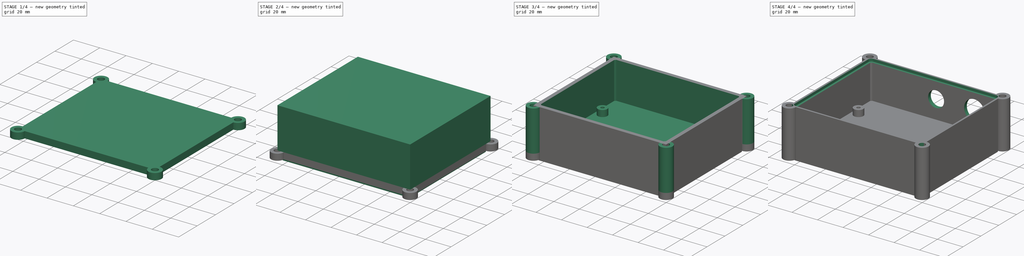
[diagram: build sequence overview — one tinted view per stage of 4, left to right]
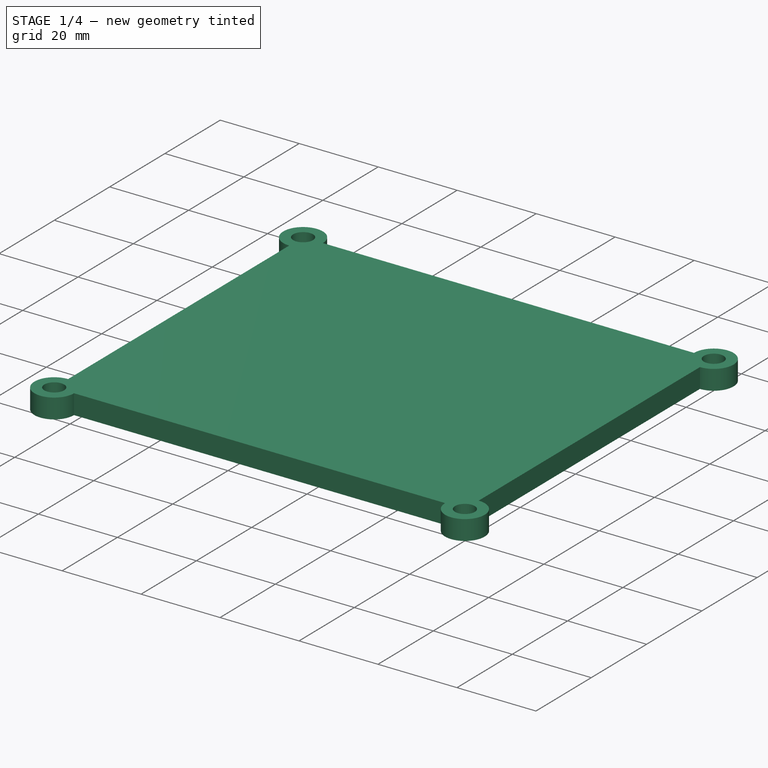
[diagram: stage 1 of 4 — iso view after this stage's code; geometry added in this stage tinted green]
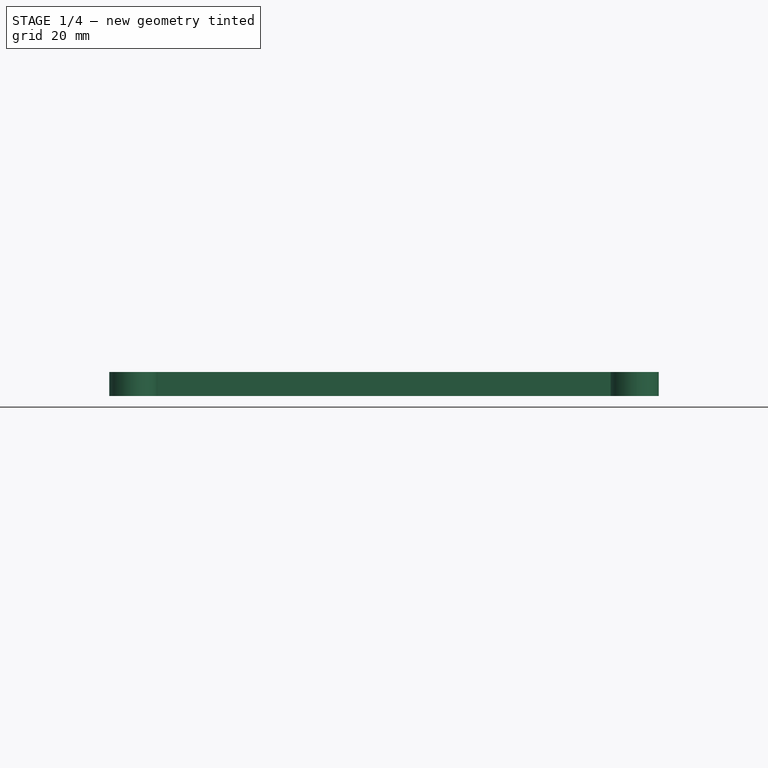
[diagram: stage 1 of 4 — front view after this stage's code; geometry added in this stage tinted green]
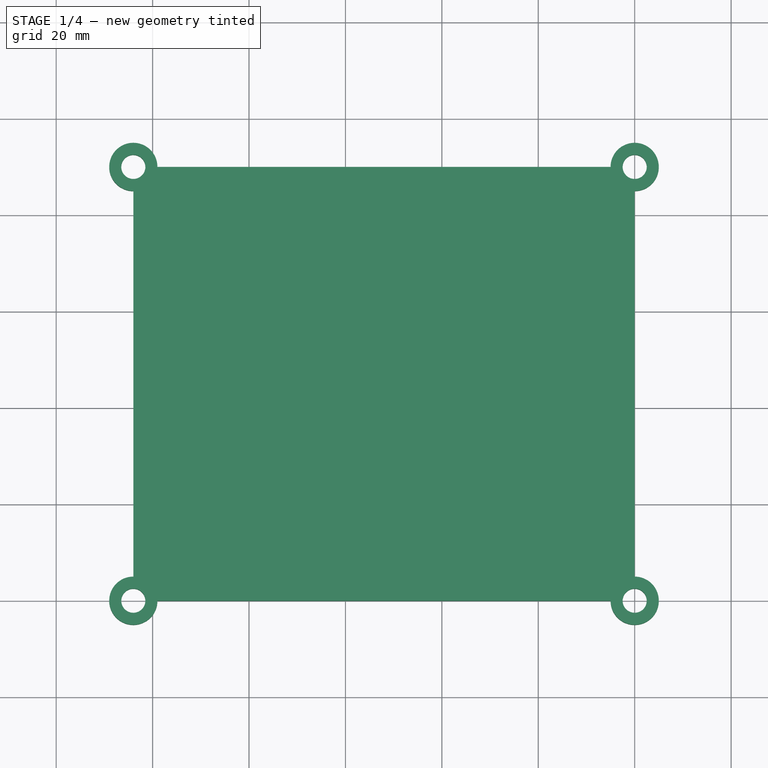
[diagram: stage 1 of 4 — top view after this stage's code; geometry added in this stage tinted green]
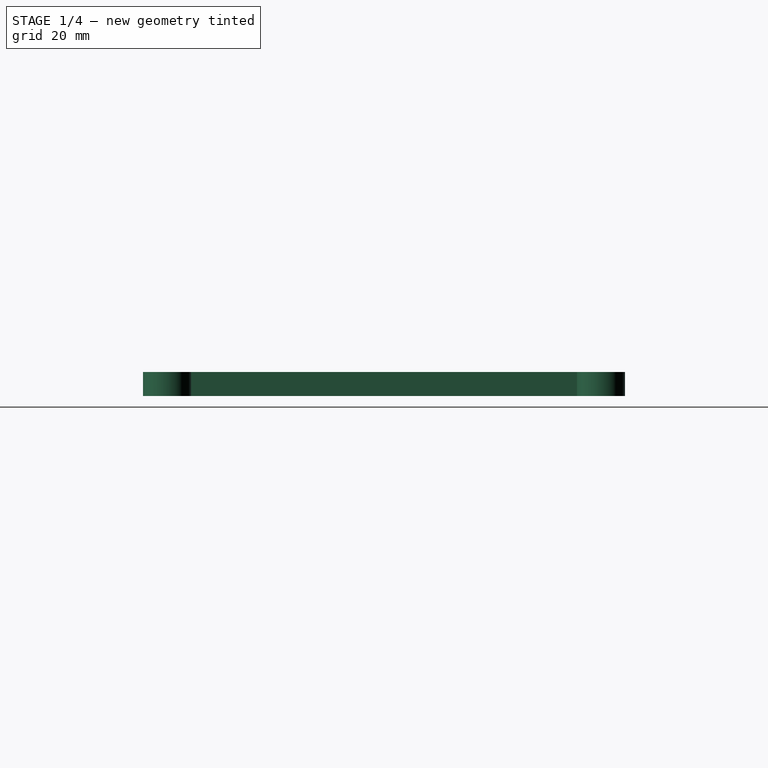
[diagram: stage 1 of 4 — right view after this stage's code; geometry added in this stage tinted green]
FCSTD DOCUMENT  (FreeCAD 0.18.4R)
Label: bat monitor
License: All rights reserved
LicenseURL: http://en.wikipedia.org/wiki/All_rights_reserved
objects: Sketcher::SketchObject×14, PartDesign::Pocket×7, PartDesign::Pad×6, PartDesign::Body×2
note: 42 computed .brp shape members not serialized (recipe doc carries the construction recipe); baked Part::Feature solids carry a one-line shape summary decoded from their .brp

FEATURE [Sketcher::SketchObject] Sketch008
  MapMode = 5
  Support = -> [XY_Plane001]
  sketch-geometry (4):
    g0: LineSegment StartX=0 StartY=0 StartZ=0 EndX=-104 EndY=0 EndZ=0
    g1: LineSegment StartX=-104 StartY=0 StartZ=0 EndX=-104 EndY=90 EndZ=0
    g2: LineSegment StartX=-104 StartY=90 StartZ=0 EndX=0 EndY=90 EndZ=0
    g3: LineSegment StartX=0 StartY=90 StartZ=0 EndX=0 EndY=0 EndZ=0
  constraints (11):
    c: Coincident(g0,g1)
    c: Coincident(g1,g2)
    c: Coincident(g2,g3)
    c: Coincident(g3,g0)
    c: Horizontal(g0)
    c: Horizontal(g2)
    c: Vertical(g1)
    c: Vertical(g3)
    c: Coincident(g0,g-1)
    c: DistanceX(g2,g2) = 104
    c: DistanceY(g1,g1) = 90
FEATURE [PartDesign::Pad] Pad003
  Length = 5
  Length2 = 100
  Profile = -> Sketch008
  Refine = true
  Reversed = true
  Type = 0
FEATURE [Sketcher::SketchObject] Sketch009
  ExternalGeometry = -> [Pad003]
  MapMode = 5
  Placement = pos=(0,0,-5) rot=(1,0,0;3.14159rad)
  Support = -> [Pad003]
  sketch-geometry (4):
    g0: Circle CenterX=-104 CenterY=0 CenterZ=0 NormalX=0 NormalY=0 NormalZ=1 AngleXU=0 Radius=5
    g1: Circle CenterX=0 CenterY=0 CenterZ=0 NormalX=0 NormalY=0 NormalZ=1 AngleXU=0 Radius=5
    g2: Circle CenterX=0 CenterY=-90 CenterZ=0 NormalX=0 NormalY=0 NormalZ=1 AngleXU=0 Radius=5
    g3: Circle CenterX=-104 CenterY=-90 CenterZ=0 NormalX=0 NormalY=0 NormalZ=1 AngleXU=0 Radius=5
  constraints (8):
    c: Coincident(g0,g-5)
    c: Coincident(g1,g-1)
    c: Coincident(g2,g-3)
    c: Coincident(g3,g-5)
    c: Diameter(g0) = 10
    c: Equal(g0,g1)
    c: Equal(g0,g2)
    c: Equal(g0,g3)
FEATURE [PartDesign::Pad] Pad004
  BaseFeature = -> Pad003
  Length = 5
  Length2 = 100
  Profile = -> Sketch009
  Refine = true
  Reversed = true
  Type = 0
FEATURE [Sketcher::SketchObject] Sketch010
  ExternalGeometry = -> [Pad004]
  MapMode = 5
  Placement = pos=(0,0,-5) rot=(1,0,0;3.14159rad)
  Support = -> [Pad004]
  sketch-geometry (4):
    g0: Circle CenterX=-104 CenterY=0 CenterZ=0 NormalX=0 NormalY=0 NormalZ=1 AngleXU=0 Radius=2.5
    g1: Circle CenterX=-104 CenterY=-90 CenterZ=0 NormalX=0 NormalY=0 NormalZ=1 AngleXU=0 Radius=2.5
    g2: Circle CenterX=0 CenterY=-90 CenterZ=0 NormalX=0 NormalY=0 NormalZ=1 AngleXU=0 Radius=2.5
    g3: Circle CenterX=0 CenterY=0 CenterZ=0 NormalX=0 NormalY=0 NormalZ=1 AngleXU=0 Radius=2.5
  constraints (8):
    c: Diameter(g0) = 5
    c: Equal(g0,g3)
    c: Equal(g0,g2)
    c: Equal(g0,g1)
    c: Coincident(g2,g-6)
    c: Coincident(g1,g-3)
    c: Coincident(g0,g-4)
    c: Coincident(g3,g-1)
FEATURE [PartDesign::Pocket] Pocket005
  BaseFeature = -> Pad004
  Length = 5
  Length2 = 100
  Profile = -> Sketch010
  Refine = true
  Type = 0
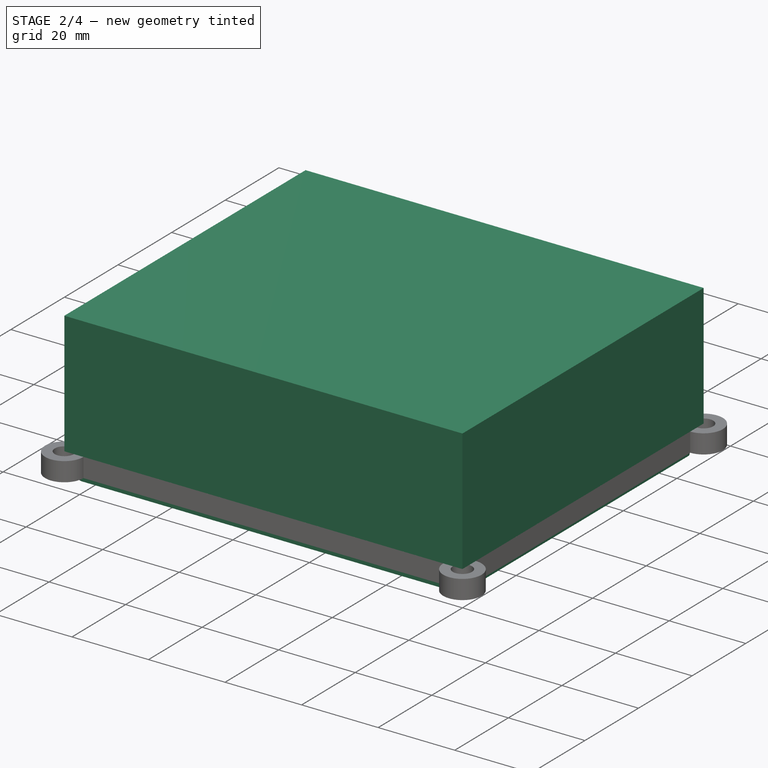
[diagram: stage 2 of 4 — iso view after this stage's code; geometry added in this stage tinted green]
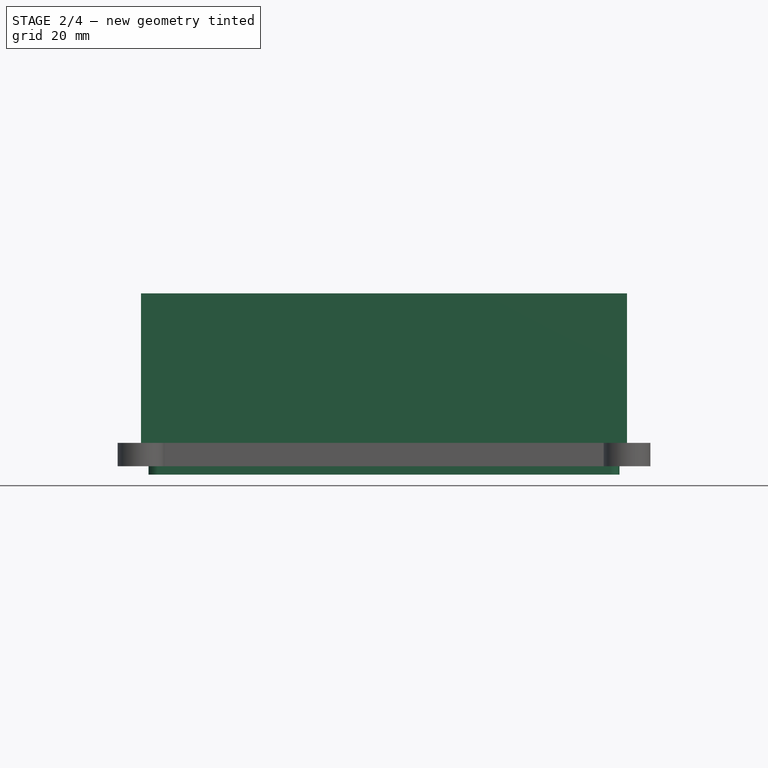
[diagram: stage 2 of 4 — front view after this stage's code; geometry added in this stage tinted green]
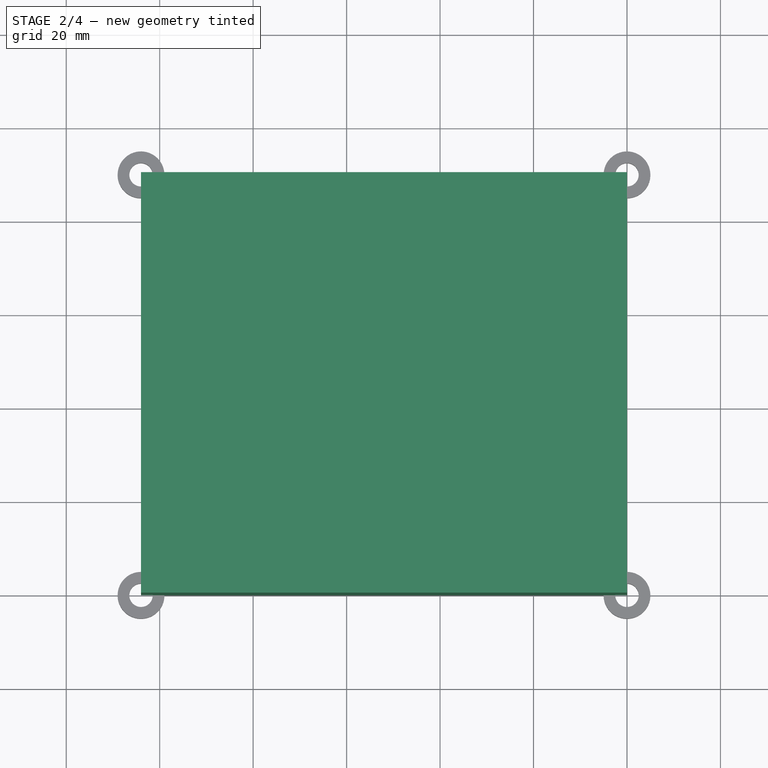
[diagram: stage 2 of 4 — top view after this stage's code; geometry added in this stage tinted green]
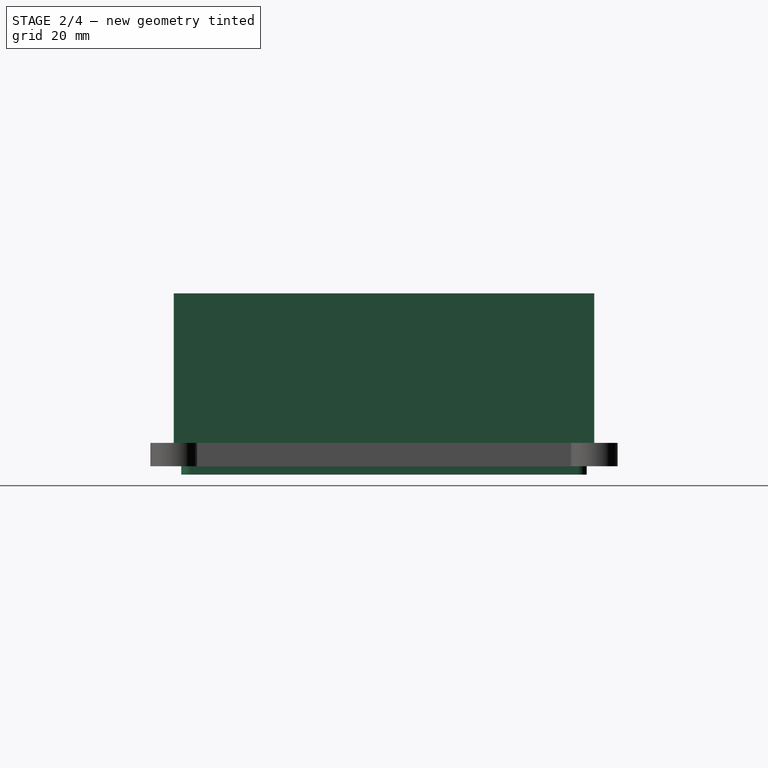
[diagram: stage 2 of 4 — right view after this stage's code; geometry added in this stage tinted green]
FEATURE [Sketcher::SketchObject] Sketch
  MapMode = 5
  Support = -> [XY_Plane]
  sketch-geometry (18):
    g0: LineSegment StartX=-104 StartY=90 StartZ=0 EndX=0 EndY=90 EndZ=0
    g1: LineSegment StartX=0 StartY=90 StartZ=0 EndX=0 EndY=0 EndZ=0
    g2: LineSegment StartX=0 StartY=0 StartZ=0 EndX=-104 EndY=0 EndZ=0
    g3: LineSegment StartX=-104 StartY=0 StartZ=0 EndX=-104 EndY=90 EndZ=0
    g4: LineSegment StartX=-98.98 StartY=68.5 StartZ=0 EndX=-5 EndY=68.5 EndZ=0
    g5: LineSegment StartX=-5 StartY=68.5 StartZ=0 EndX=-5 EndY=5 EndZ=0
    g6: LineSegment StartX=-5 StartY=5 StartZ=0 EndX=-98.98 EndY=5 EndZ=0
    g7: LineSegment StartX=-98.98 StartY=5 StartZ=0 EndX=-98.98 EndY=68.5 EndZ=0
    g8: Circle CenterX=-95.17 CenterY=64.69 CenterZ=0 NormalX=0 NormalY=0 NormalZ=1 AngleXU=0 Radius=3.5
    g9: Circle CenterX=-95.17 CenterY=64.69 CenterZ=0 NormalX=0 NormalY=0 NormalZ=1 AngleXU=0 Radius=1.375
    g10: Circle CenterX=-8.81 CenterY=64.69 CenterZ=0 NormalX=0 NormalY=0 NormalZ=1 AngleXU=0 Radius=3.5
    g11: Circle CenterX=-8.81 CenterY=64.69 CenterZ=0 NormalX=0 NormalY=0 NormalZ=1 AngleXU=0 Radius=1.375
    g12: Circle CenterX=-95.17 CenterY=8.81 CenterZ=0 NormalX=0 NormalY=0 NormalZ=1 AngleXU=0 Radius=3.5
    g13: Circle CenterX=-95.17 CenterY=8.81 CenterZ=0 NormalX=0 NormalY=0 NormalZ=1 AngleXU=0 Radius=1.375
    g14: Circle CenterX=-8.81 CenterY=8.81 CenterZ=0 NormalX=0 NormalY=0 NormalZ=1 AngleXU=0 Radius=3.5
    g15: Circle CenterX=-8.81 CenterY=8.81 CenterZ=0 NormalX=0 NormalY=0 NormalZ=1 AngleXU=0 Radius=1.375
    g16: LineSegment [constr] StartX=-51.99 StartY=68.5 StartZ=0 EndX=-51.99 EndY=5 EndZ=0
    g17: LineSegment [constr] StartX=-98.98 StartY=36.75 StartZ=0 EndX=0 EndY=36.75 EndZ=0
  constraints (46):
    c: Coincident(g0,g1)
    c: Coincident(g1,g2)
    c: Coincident(g2,g3)
    c: Coincident(g3,g0)
    c: Horizontal(g0)
    c: Horizontal(g2)
    c: Vertical(g1)
    c: Vertical(g3)
    c: DistanceY(g3,g3) = 90
    c: DistanceX(g0,g0) = 104
    c: Coincident(g4,g5)
    c: Coincident(g5,g6)
    c: Coincident(g6,g7)
    c: Coincident(g7,g4)
    c: Horizontal(g4)
    c: Horizontal(g6)
    c: Vertical(g5)
    c: Vertical(g7)
    c: DistanceX(g4,g4) = 93.98
    c: DistanceY(g7,g7) = 63.5
    c: Coincident(g1,g-1)
    c: Coincident(g9,g8)
    c: Coincident(g11,g10)
    c: Coincident(g13,g12)
    c: Coincident(g15,g14)
    c: Diameter(g9) = 2.75
    c: Equal(g9,g13)
    c: Equal(g9,g15)
    c: Equal(g9,g11)
    c: Diameter(g8) = 7
    c: Equal(g8,g10)
    c: Equal(g8,g14)
    c: Equal(g8,g12)
    c: DistanceY(g14,g10) = 55.88
    c: DistanceX(g12,g14) = 86.36
    c: PointOnObject(g16,g4)
    c: PointOnObject(g16,g6)
    c: PointOnObject(g17,g7)
    c: PointOnObject(g17,g1)
    c: Symmetric(g6,g5,g16)
    c: Symmetric(g4,g5,g17)
    c: Symmetric(g10,g8,g16)
    c: Symmetric(g12,g8,g17)
    c: DistanceY(g1,g5) = 5
    c: DistanceX(g5,g1) = 5
    c: Symmetric(g10,g14,g17)
FEATURE [Sketcher::SketchObject] Sketch001
  ExternalGeometry = -> [Sketch]
  MapMode = 5
  Support = -> [XY_Plane]
  sketch-geometry (4):
    g0: LineSegment StartX=-104 StartY=90 StartZ=0 EndX=0 EndY=90 EndZ=0
    g1: LineSegment StartX=0 StartY=90 StartZ=0 EndX=0 EndY=0 EndZ=0
    g2: LineSegment StartX=0 StartY=0 StartZ=0 EndX=-104 EndY=0 EndZ=0
    g3: LineSegment StartX=-104 StartY=0 StartZ=0 EndX=-104 EndY=90 EndZ=0
  constraints (10):
    c: Coincident(g0,g1)
    c: Coincident(g1,g2)
    c: Coincident(g2,g3)
    c: Coincident(g3,g0)
    c: Horizontal(g0)
    c: Horizontal(g2)
    c: Vertical(g1)
    c: Vertical(g3)
    c: Coincident(g0,g-4)
    c: Coincident(g1,g-1)
FEATURE [PartDesign::Pad] Pad
  Length = 32
  Length2 = 100
  Profile = -> Sketch001
  Type = 0
FEATURE [Sketcher::SketchObject] Sketch011
  ExternalGeometry = -> [Pocket005]
  MapMode = 5
  Support = -> [Pocket005]
  sketch-geometry (8):
    g0: LineSegment StartX=-34.9811 StartY=28.1592 StartZ=0 EndX=-31.9811 EndY=28.1592 EndZ=0
    g1: LineSegment StartX=-31.9811 StartY=28.1592 StartZ=0 EndX=-31.9811 EndY=17.1592 EndZ=0
    g2: LineSegment StartX=-31.9811 StartY=17.1592 StartZ=0 EndX=-34.9811 EndY=17.1592 EndZ=0
    g3: LineSegment StartX=-34.9811 StartY=17.1592 StartZ=0 EndX=-34.9811 EndY=28.1592 EndZ=0
    g4: LineSegment [constr] StartX=-71.4811 StartY=28.6592 StartZ=0 EndX=-31.4811 EndY=28.6592 EndZ=0
    g5: LineSegment [constr] StartX=-31.4811 StartY=28.6592 StartZ=0 EndX=-31.4811 EndY=16.6592 EndZ=0
    g6: LineSegment [constr] StartX=-31.4811 StartY=16.6592 StartZ=0 EndX=-71.4811 EndY=16.6592 EndZ=0
    g7: LineSegment [constr] StartX=-71.4811 StartY=16.6592 StartZ=0 EndX=-71.4811 EndY=28.6592 EndZ=0
  constraints (22):
    c: Coincident(g0,g1)
    c: Coincident(g1,g2)
    c: Coincident(g2,g3)
    c: Coincident(g3,g0)
    c: Horizontal(g0)
    c: Horizontal(g2)
    c: Vertical(g1)
    c: Vertical(g3)
    c: DistanceY(g1,g1) = 11
    c: DistanceX(g0,g0) = 3
    c: Coincident(g4,g5)
    c: Coincident(g5,g6)
    c: Coincident(g6,g7)
    c: Coincident(g7,g4)
    c: Horizontal(g4)
    c: Horizontal(g6)
    c: Vertical(g5)
    c: Vertical(g7)
    c: DistanceX(g4,g4) = 40
    c: DistanceY(g5,g5) = 12
    c: DistanceY(g6,g2) = 0.5
    c: DistanceX(g1,g5) = 0.5
FEATURE [PartDesign::Pocket] Pocket006
  BaseFeature = -> Pocket005
  Length = 5
  Length2 = 100
  Profile = -> Sketch011
  Refine = true
  Type = 0
FEATURE [PartDesign::Body] Body
  Group = -> [Sketch,Sketch001,Pad,Sketch002,Pocket,Sketch003,Pad001,Sketch004,Sketch005,Pocket002,Sketch006,Pad002,Pocket003,Sketch007,Pocket004,Sketch012,Pocket007]
  Origin = -> Origin
  Tip = -> Pocket007
FEATURE [Sketcher::SketchObject] Sketch013
  ExternalGeometry = -> [Pocket006]
  MapMode = 5
  Placement = pos=(0,0,-5) rot=(1,0,0;3.14159rad)
  Support = -> [Pocket006]
  sketch-geometry (12):
    g0: LineSegment StartX=-100.4 StartY=-1.6 StartZ=0 EndX=-3.6 EndY=-1.6 EndZ=0
    g1: LineSegment StartX=-1.6 StartY=-3.6 StartZ=0 EndX=-1.6 EndY=-86.4 EndZ=0
    g2: LineSegment StartX=-3.6 StartY=-88.4 StartZ=0 EndX=-100.4 EndY=-88.4 EndZ=0
    g3: LineSegment StartX=-102.4 StartY=-86.4 StartZ=0 EndX=-102.4 EndY=-3.6 EndZ=0
    g4: LineSegment StartX=-101 StartY=-3 StartZ=0 EndX=-3 EndY=-3 EndZ=0
    g5: LineSegment StartX=-3 StartY=-3 StartZ=0 EndX=-3 EndY=-87 EndZ=0
    g6: LineSegment StartX=-3 StartY=-87 StartZ=0 EndX=-101 EndY=-87 EndZ=0
    g7: LineSegment StartX=-101 StartY=-87 StartZ=0 EndX=-101 EndY=-3 EndZ=0
    g8: ArcOfCircle CenterX=-3.6 CenterY=-3.6 CenterZ=0 NormalX=0 NormalY=0 NormalZ=1 AngleXU=0 Radius=2 StartAngle=0 EndAngle=1.5708
    g9: ArcOfCircle CenterX=-100.4 CenterY=-3.6 CenterZ=0 NormalX=0 NormalY=0 NormalZ=1 AngleXU=0 Radius=2 StartAngle=1.5708 EndAngle=3.14159
    g10: ArcOfCircle CenterX=-100.4 CenterY=-86.4 CenterZ=0 NormalX=0 NormalY=0 NormalZ=1 AngleXU=0 Radius=2 StartAngle=3.14159 EndAngle=4.71239
    g11: ArcOfCircle CenterX=-3.6 CenterY=-86.4 CenterZ=0 NormalX=0 NormalY=0 NormalZ=1 AngleXU=0 Radius=2 StartAngle=4.71239 EndAngle=6.28319
  constraints (32):
    c: Horizontal(g0)
    c: Horizontal(g2)
    c: Vertical(g1)
    c: Vertical(g3)
    c: Coincident(g4,g5)
    c: Coincident(g5,g6)
    c: Coincident(g6,g7)
    c: Coincident(g7,g4)
    c: Horizontal(g4)
    c: Horizontal(g6)
    c: Vertical(g5)
    c: Vertical(g7)
    c: Tangent(g0,g8) = 1.5708
    c: Tangent(g1,g8) = 1.5708
    c: Tangent(g0,g9) = 1.5708
    c: Tangent(g3,g9) = 1.5708
    c: Tangent(g2,g10) = 1.5708
    c: Tangent(g3,g10) = 1.5708
    c: Tangent(g1,g11) = 1.5708
    c: Tangent(g2,g11) = 1.5708
    c: Diameter(g9) = 4
    c: Equal(g9,g8)
    c: Equal(g9,g11)
    c: Equal(g9,g10)
    c: DistanceX(g4,g-3) = 3
    c: DistanceY(g4,g-5) = 3
    c: DistanceX(g-4,g6) = 3
    c: DistanceY(g-6,g6) = 3
    c: DistanceY(g2,g6) = 1.4
    c: DistanceX(g3,g6) = 1.4
    c: DistanceX(g4,g1) = 1.4
    c: DistanceY(g4,g0) = 1.4
FEATURE [PartDesign::Pad] Pad005
  BaseFeature = -> Pocket006
  Length = 1.8
  Length2 = 100
  Profile = -> Sketch013
  Refine = true
  Type = 0
FEATURE [PartDesign::Body] Body001  label="top"
  Group = -> [Sketch008,Pad003,Sketch009,Pad004,Sketch010,Pocket005,Sketch011,Pocket006,Sketch013,Pad005]
  Origin = -> Origin001
  Placement = pos=(0,0,39) rot=(0,0,1;0rad)
  Tip = -> Pad005
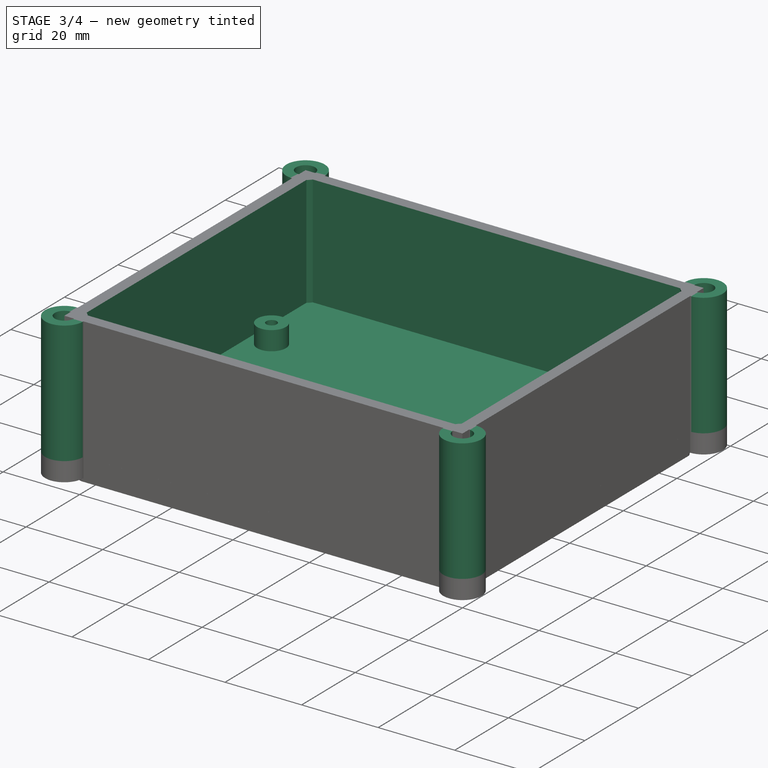
[diagram: stage 3 of 4 — iso view after this stage's code; geometry added in this stage tinted green]
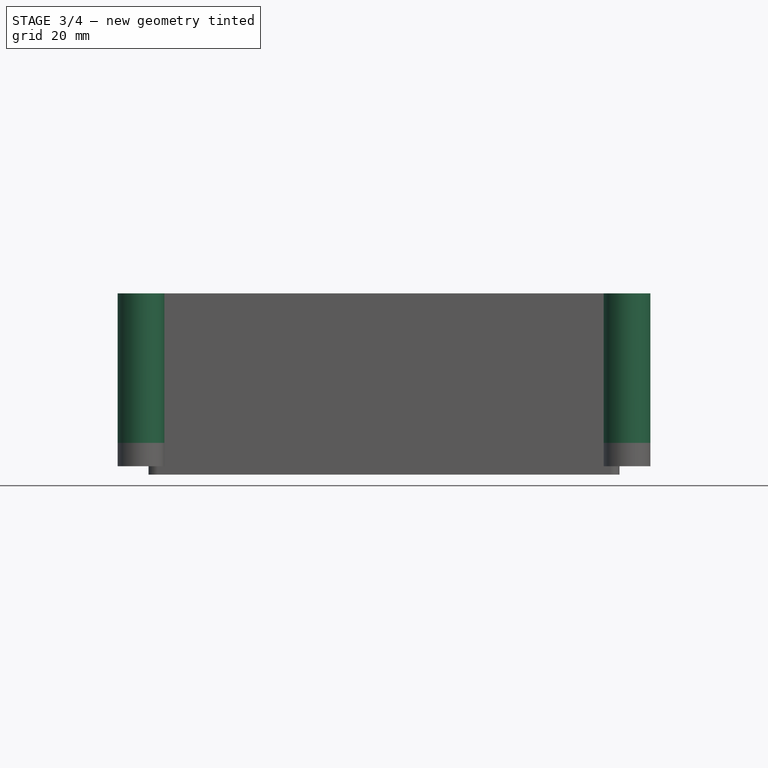
[diagram: stage 3 of 4 — front view after this stage's code; geometry added in this stage tinted green]
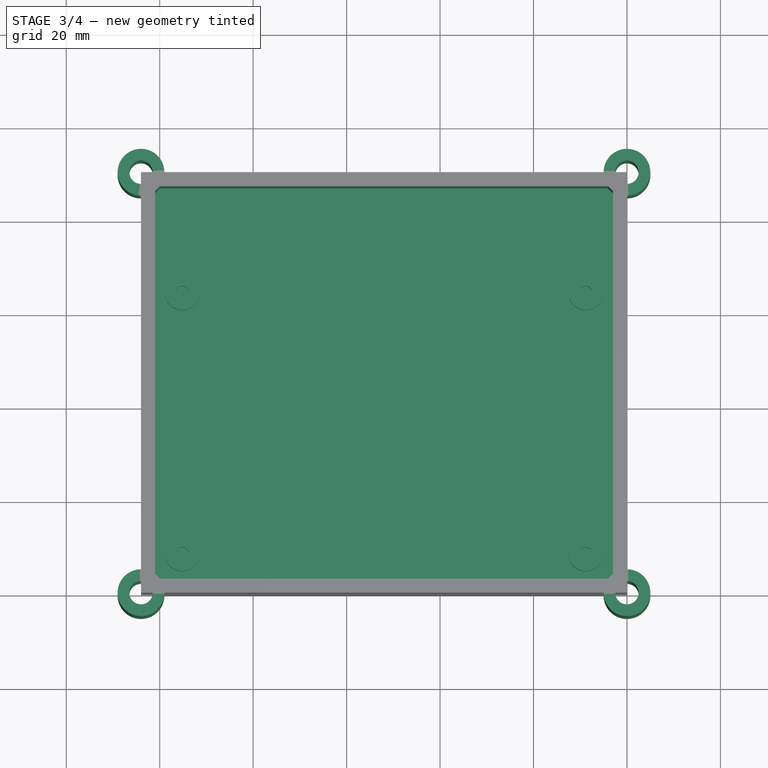
[diagram: stage 3 of 4 — top view after this stage's code; geometry added in this stage tinted green]
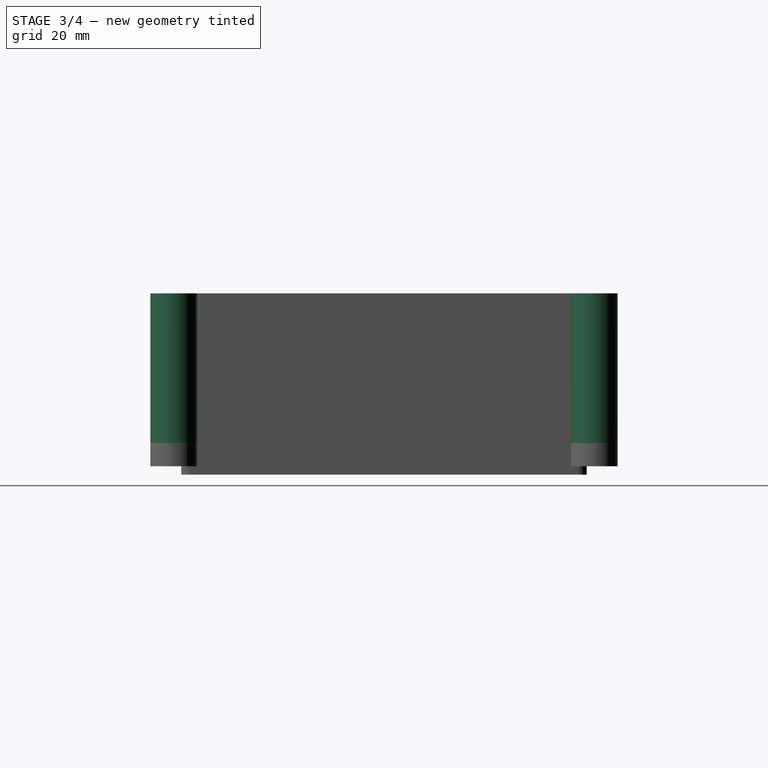
[diagram: stage 3 of 4 — right view after this stage's code; geometry added in this stage tinted green]
FEATURE [Sketcher::SketchObject] Sketch002
  ExternalGeometry = -> [Pad]
  MapMode = 5
  Placement = pos=(0,0,32) rot=(0,0,1;0rad)
  Support = -> [Pad]
  sketch-geometry (4):
    g0: LineSegment StartX=-101 StartY=87 StartZ=0 EndX=-3 EndY=87 EndZ=0
    g1: LineSegment StartX=-3 StartY=87 StartZ=0 EndX=-3 EndY=3 EndZ=0
    g2: LineSegment StartX=-3 StartY=3 StartZ=0 EndX=-101 EndY=3 EndZ=0
    g3: LineSegment StartX=-101 StartY=3 StartZ=0 EndX=-101 EndY=87 EndZ=0
  constraints (12):
    c: Coincident(g0,g1)
    c: Coincident(g1,g2)
    c: Coincident(g2,g3)
    c: Coincident(g3,g0)
    c: Horizontal(g0)
    c: Horizontal(g2)
    c: Vertical(g1)
    c: Vertical(g3)
    c: DistanceY(g-1,g1) = 3
    c: DistanceX(g1,g-1) = 3
    c: DistanceY(g0,g-4) = 3
    c: DistanceX(g-4,g0) = 3
FEATURE [PartDesign::Pocket] Pocket
  BaseFeature = -> Pad
  Length = 29
  Length2 = 100
  Profile = -> Sketch002
  Type = 0
  expr: Length = Pad.Length - 3mm
FEATURE [Sketcher::SketchObject] Sketch003
  ExternalGeometry = -> [Sketch]
  MapMode = 5
  Placement = pos=(0,0,3) rot=(0,0,1;0rad)
  Support = -> [Pocket]
  sketch-geometry (8):
    g0: Circle CenterX=-95.17 CenterY=64.69 CenterZ=0 NormalX=0 NormalY=0 NormalZ=1 AngleXU=0 Radius=3.75
    g1: Circle CenterX=-95.17 CenterY=64.69 CenterZ=0 NormalX=0 NormalY=0 NormalZ=1 AngleXU=0 Radius=1.375
    g2: Circle CenterX=-95.17 CenterY=8.81 CenterZ=0 NormalX=0 NormalY=0 NormalZ=1 AngleXU=0 Radius=3.75
    g3: Circle CenterX=-95.17 CenterY=8.81 CenterZ=0 NormalX=0 NormalY=0 NormalZ=1 AngleXU=0 Radius=1.375
    g4: Circle CenterX=-8.81 CenterY=8.81 CenterZ=0 NormalX=0 NormalY=0 NormalZ=1 AngleXU=0 Radius=3.75
    g5: Circle CenterX=-8.81 CenterY=8.81 CenterZ=0 NormalX=0 NormalY=0 NormalZ=1 AngleXU=0 Radius=1.375
    g6: Circle CenterX=-8.81 CenterY=64.69 CenterZ=0 NormalX=0 NormalY=0 NormalZ=1 AngleXU=0 Radius=3.75
    g7: Circle CenterX=-8.81 CenterY=64.69 CenterZ=0 NormalX=0 NormalY=0 NormalZ=1 AngleXU=0 Radius=1.375
  constraints (16):
    c: Coincident(g3,g2)
    c: Coincident(g5,g4)
    c: Coincident(g7,g6)
    c: Diameter(g1) = 2.75
    c: Equal(g1,g7)
    c: Equal(g1,g5)
    c: Equal(g1,g3)
    c: Diameter(g0) = 7.5
    c: Equal(g0,g6)
    c: Equal(g0,g2)
    c: Equal(g0,g4)
    c: Coincident(g0,g-3)
    c: Coincident(g1,g0)
    c: Coincident(g-6,g6)
    c: Coincident(g4,g-4)
    c: Coincident(g2,g-5)
FEATURE [PartDesign::Pad] Pad001
  BaseFeature = -> Pocket
  Length = 5
  Length2 = 100
  Profile = -> Sketch003
  Type = 0
FEATURE [Sketcher::SketchObject] Sketch004
  ExternalGeometry = -> [Pad001]
  MapMode = 5
  Placement = pos=(0,90,0) rot=(0,0.707107,0.707107;3.14159rad)
  Support = -> [Pad001]
  sketch-geometry (2):
    g0: Circle CenterX=20 CenterY=17.5 CenterZ=0 NormalX=0 NormalY=0 NormalZ=1 AngleXU=0 Radius=8
    g1: Circle CenterX=50 CenterY=17.5 CenterZ=0 NormalX=0 NormalY=0 NormalZ=1 AngleXU=0 Radius=6.25
  constraints (6):
    c: Diameter(g0) = 16
    c: DistanceX(g-1,g0) = 20
    c: DistanceY(g-1,g0) = 17.5
    c: Diameter(g1) = 12.5
    c: Horizontal(g1,g0)
    c: DistanceX(g0,g1) = 30
FEATURE [Sketcher::SketchObject] Sketch005
  MapMode = 5
  Placement = pos=(0,0,0) rot=(1,0,0;1.5708rad)
  sketch-geometry (4):
    g0: LineSegment StartX=-110.808 StartY=19.6633 StartZ=0 EndX=-108.058 EndY=19.6633 EndZ=0
    g1: LineSegment StartX=-108.058 StartY=19.6633 StartZ=0 EndX=-108.058 EndY=8.66332 EndZ=0
    g2: LineSegment StartX=-108.058 StartY=8.66332 StartZ=0 EndX=-110.808 EndY=8.66332 EndZ=0
    g3: LineSegment StartX=-110.808 StartY=8.66332 StartZ=0 EndX=-110.808 EndY=19.6633 EndZ=0
  constraints (10):
    c: Coincident(g0,g1)
    c: Coincident(g1,g2)
    c: Coincident(g2,g3)
    c: Coincident(g3,g0)
    c: Horizontal(g0)
    c: Horizontal(g2)
    c: Vertical(g1)
    c: Vertical(g3)
    c: DistanceY(g1,g1) = 11
    c: DistanceX(g0,g0) = 2.75
FEATURE [PartDesign::Pocket] Pocket002
  BaseFeature = -> Pad001
  Length = 5
  Length2 = 100
  Profile = -> Sketch005
  Type = 0
FEATURE [Sketcher::SketchObject] Sketch006
  ExternalGeometry = -> [Sketch]
  MapMode = 5
  Placement = pos=(0,0,0) rot=(1,0,0;3.14159rad)
  Support = -> [Pocket002]
  sketch-geometry (8):
    g0: Circle CenterX=-104 CenterY=0 CenterZ=0 NormalX=0 NormalY=0 NormalZ=1 AngleXU=0 Radius=5
    g1: Circle CenterX=-104 CenterY=-90 CenterZ=0 NormalX=0 NormalY=0 NormalZ=1 AngleXU=0 Radius=5
    g2: Circle CenterX=0 CenterY=-90 CenterZ=0 NormalX=0 NormalY=0 NormalZ=1 AngleXU=0 Radius=5
    g3: Circle CenterX=0 CenterY=0 CenterZ=0 NormalX=0 NormalY=0 NormalZ=1 AngleXU=0 Radius=5
    g4: Circle CenterX=-104 CenterY=0 CenterZ=0 NormalX=0 NormalY=0 NormalZ=1 AngleXU=0 Radius=2.5
    g5: Circle CenterX=-104 CenterY=-90 CenterZ=0 NormalX=0 NormalY=0 NormalZ=1 AngleXU=0 Radius=2.5
    g6: Circle CenterX=0 CenterY=-90 CenterZ=0 NormalX=0 NormalY=0 NormalZ=1 AngleXU=0 Radius=2.5
    g7: Circle CenterX=0 CenterY=0 CenterZ=0 NormalX=0 NormalY=0 NormalZ=1 AngleXU=0 Radius=2.5
  constraints (16):
    c: Coincident(g4,g0)
    c: Coincident(g5,g1)
    c: Coincident(g6,g2)
    c: Coincident(g7,g3)
    c: Diameter(g4) = 5
    c: Equal(g4,g5)
    c: Equal(g4,g6)
    c: Equal(g4,g7)
    c: Diameter(g0) = 10
    c: Equal(g0,g1)
    c: Equal(g0,g2)
    c: Equal(g0,g3)
    c: Coincident(g2,g-4)
    c: Coincident(g1,g-5)
    c: Coincident(g0,g-5)
    c: Coincident(g3,g-1)
FEATURE [PartDesign::Pad] Pad002
  BaseFeature = -> Pocket002
  Length = 32
  Length2 = 100
  Profile = -> Sketch006
  Refine = true
  Reversed = true
  Type = 0
  expr: Length = Pad.Length
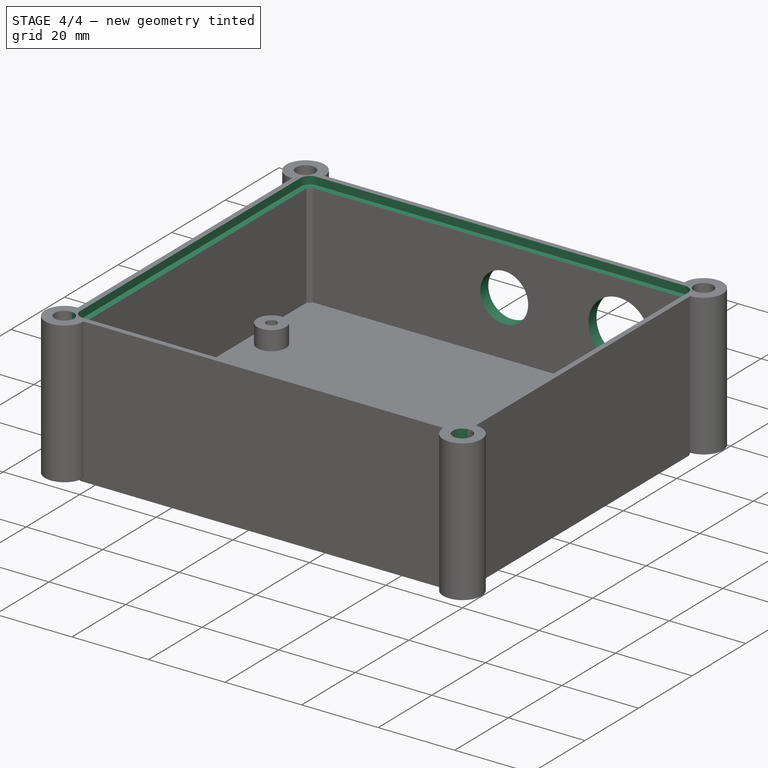
[diagram: stage 4 of 4 — iso view after this stage's code; geometry added in this stage tinted green]
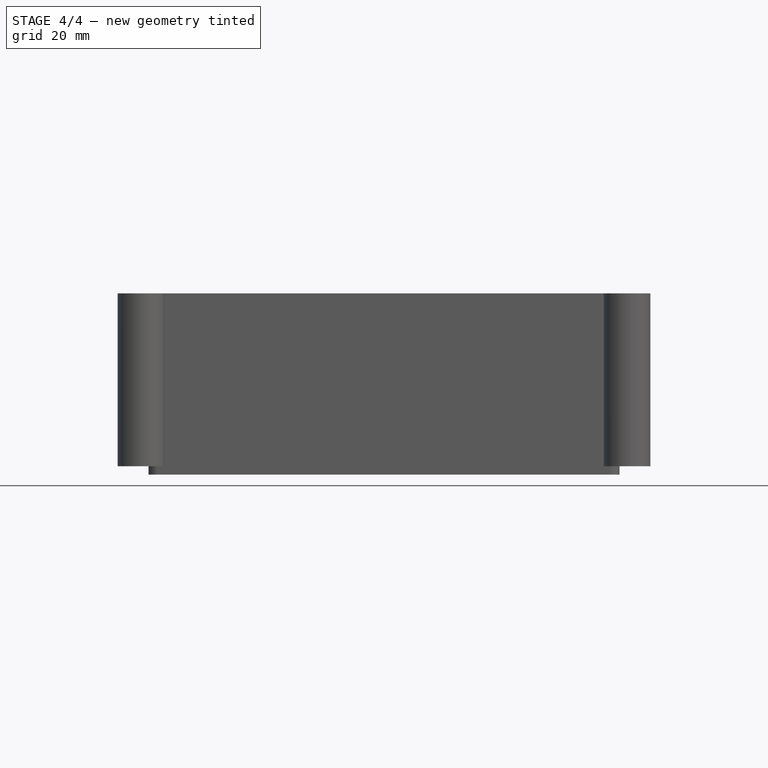
[diagram: stage 4 of 4 — front view after this stage's code; geometry added in this stage tinted green]
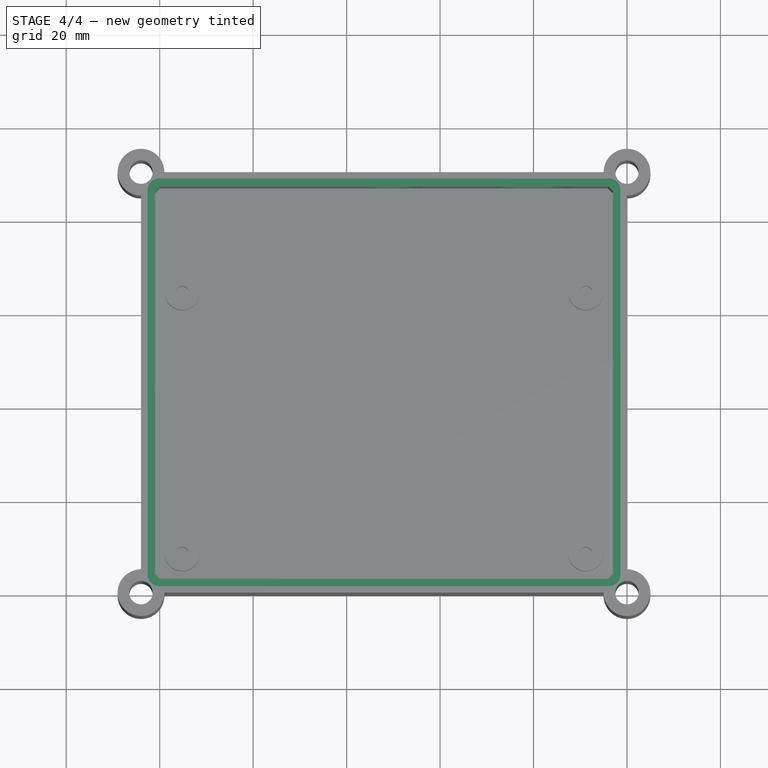
[diagram: stage 4 of 4 — top view after this stage's code; geometry added in this stage tinted green]
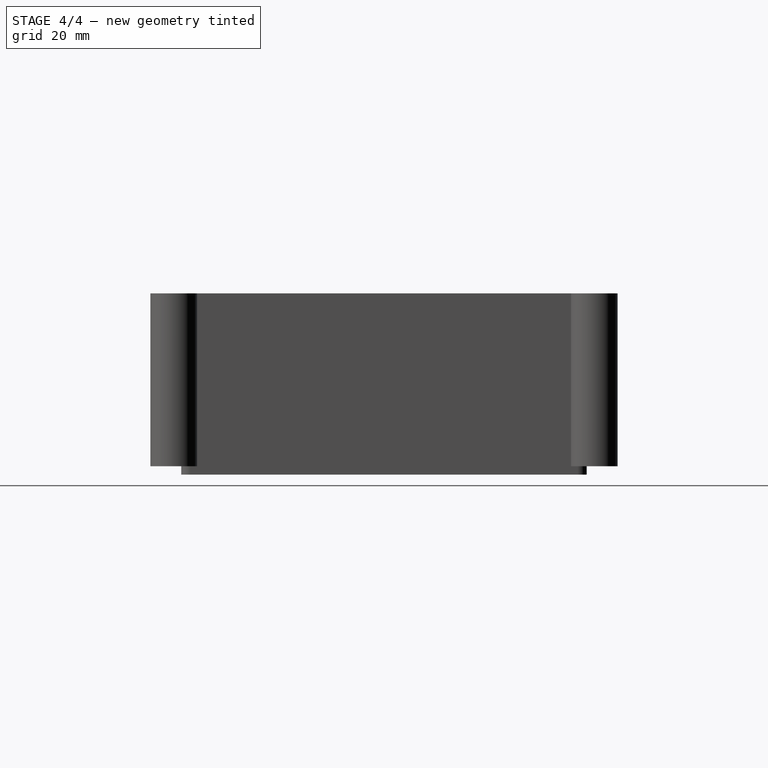
[diagram: stage 4 of 4 — right view after this stage's code; geometry added in this stage tinted green]
FEATURE [PartDesign::Pocket] Pocket003
  BaseFeature = -> Pad002
  Length = 5
  Length2 = 100
  Profile = -> Sketch004
  Refine = true
  Type = 0
FEATURE [Sketcher::SketchObject] Sketch007
  ExternalGeometry = -> [Pad002]
  MapMode = 5
  Placement = pos=(0,0,32) rot=(0,0,1;0rad)
  Support = -> [Pad002]
  sketch-geometry (4):
    g0: Circle CenterX=-104 CenterY=90 CenterZ=0 NormalX=0 NormalY=0 NormalZ=1 AngleXU=0 Radius=2.5
    g1: Circle CenterX=-104 CenterY=0 CenterZ=0 NormalX=0 NormalY=0 NormalZ=1 AngleXU=0 Radius=2.5
    g2: Circle CenterX=0 CenterY=90 CenterZ=0 NormalX=0 NormalY=0 NormalZ=1 AngleXU=0 Radius=2.5
    g3: Circle CenterX=0 CenterY=0 CenterZ=0 NormalX=0 NormalY=0 NormalZ=1 AngleXU=0 Radius=2.5
  constraints (8):
    c: Diameter(g0) = 5
    c: Equal(g0,g2)
    c: Equal(g0,g3)
    c: Equal(g0,g1)
    c: Coincident(g0,g-5)
    c: Coincident(g2,g-4)
    c: Coincident(g3,g-1)
    c: Coincident(g1,g-6)
FEATURE [PartDesign::Pocket] Pocket004
  BaseFeature = -> Pocket003
  Length = 5
  Length2 = 100
  Profile = -> Sketch007
  Refine = true
  Type = 1
FEATURE [Sketcher::SketchObject] Sketch012
  ExternalGeometry = -> [Pocket004]
  MapMode = 5
  Placement = pos=(0,0,32) rot=(0,0,1;0rad)
  Support = -> [Pocket004]
  sketch-geometry (8):
    g0: LineSegment StartX=-100.1 StartY=88.6 StartZ=0 EndX=-3.9 EndY=88.6 EndZ=0
    g1: LineSegment StartX=-1.4 StartY=86.1 StartZ=0 EndX=-1.4 EndY=3.9 EndZ=0
    g2: LineSegment StartX=-3.9 StartY=1.4 StartZ=0 EndX=-100.1 EndY=1.4 EndZ=0
    g3: LineSegment StartX=-102.6 StartY=3.9 StartZ=0 EndX=-102.6 EndY=86.1 EndZ=0
    g4: ArcOfCircle CenterX=-100.1 CenterY=3.9 CenterZ=0 NormalX=0 NormalY=0 NormalZ=1 AngleXU=0 Radius=2.5 StartAngle=3.14159 EndAngle=4.71239
    g5: ArcOfCircle CenterX=-3.9 CenterY=3.9 CenterZ=0 NormalX=0 NormalY=0 NormalZ=1 AngleXU=0 Radius=2.5 StartAngle=4.71239 EndAngle=6.28319
    g6: ArcOfCircle CenterX=-3.9 CenterY=86.1 CenterZ=0 NormalX=0 NormalY=0 NormalZ=1 AngleXU=0 Radius=2.5 StartAngle=1.4e-15 EndAngle=1.5708
    g7: ArcOfCircle CenterX=-100.1 CenterY=86.1 CenterZ=0 NormalX=0 NormalY=0 NormalZ=1 AngleXU=0 Radius=2.5 StartAngle=1.5708 EndAngle=3.14159
  constraints (16):
    c: Horizontal(g0)
    c: Horizontal(g2)
    c: Vertical(g1)
    c: Vertical(g3)
    c: Tangent(g2,g4) = 1.5708
    c: Tangent(g3,g4) = 1.5708
    c: Tangent(g1,g5) = 1.5708
    c: Tangent(g2,g5) = 1.5708
    c: Tangent(g0,g6) = 1.5708
    c: Tangent(g1,g6) = 1.5708
    c: Tangent(g0,g7) = 1.5708
    c: Tangent(g3,g7) = 1.5708
    c: Diameter(g7) = 5
    c: Equal(g7,g6)
    c: Equal(g7,g5)
    c: Equal(g7,g4)
FEATURE [PartDesign::Pocket] Pocket007
  BaseFeature = -> Pocket004
  Length = 2
  Length2 = 100
  Profile = -> Sketch012
  Refine = true
  Type = 0
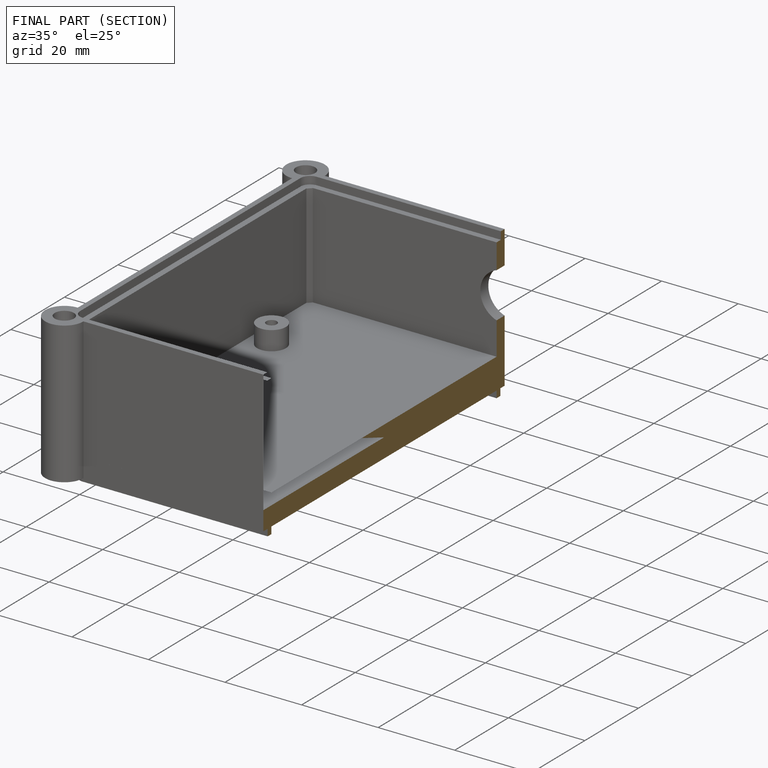
[diagram: finished part — half-section view (interior)]
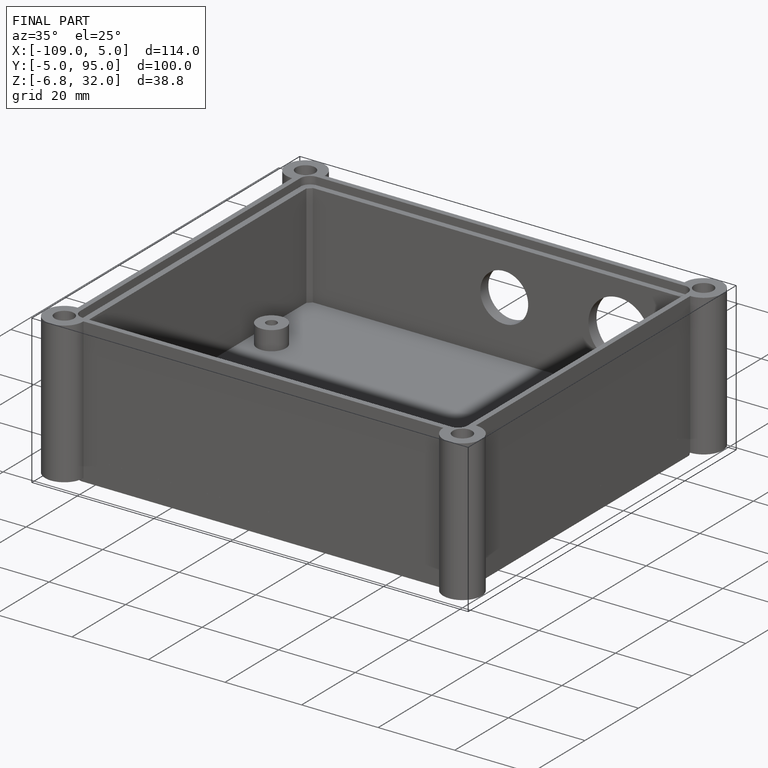
[diagram: finished part — iso view with bounding-box wireframe]
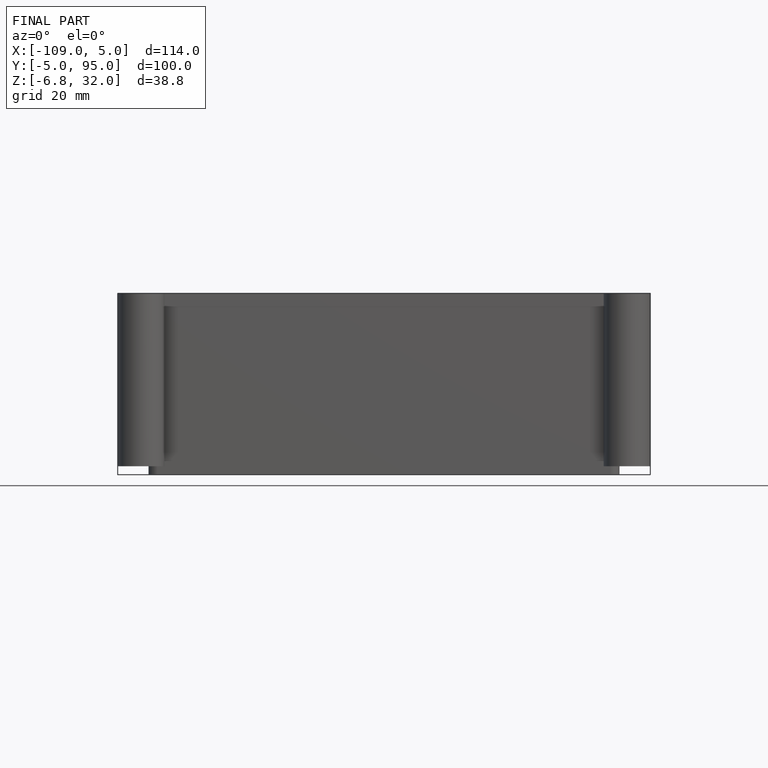
[diagram: finished part — front view with bounding-box wireframe]
